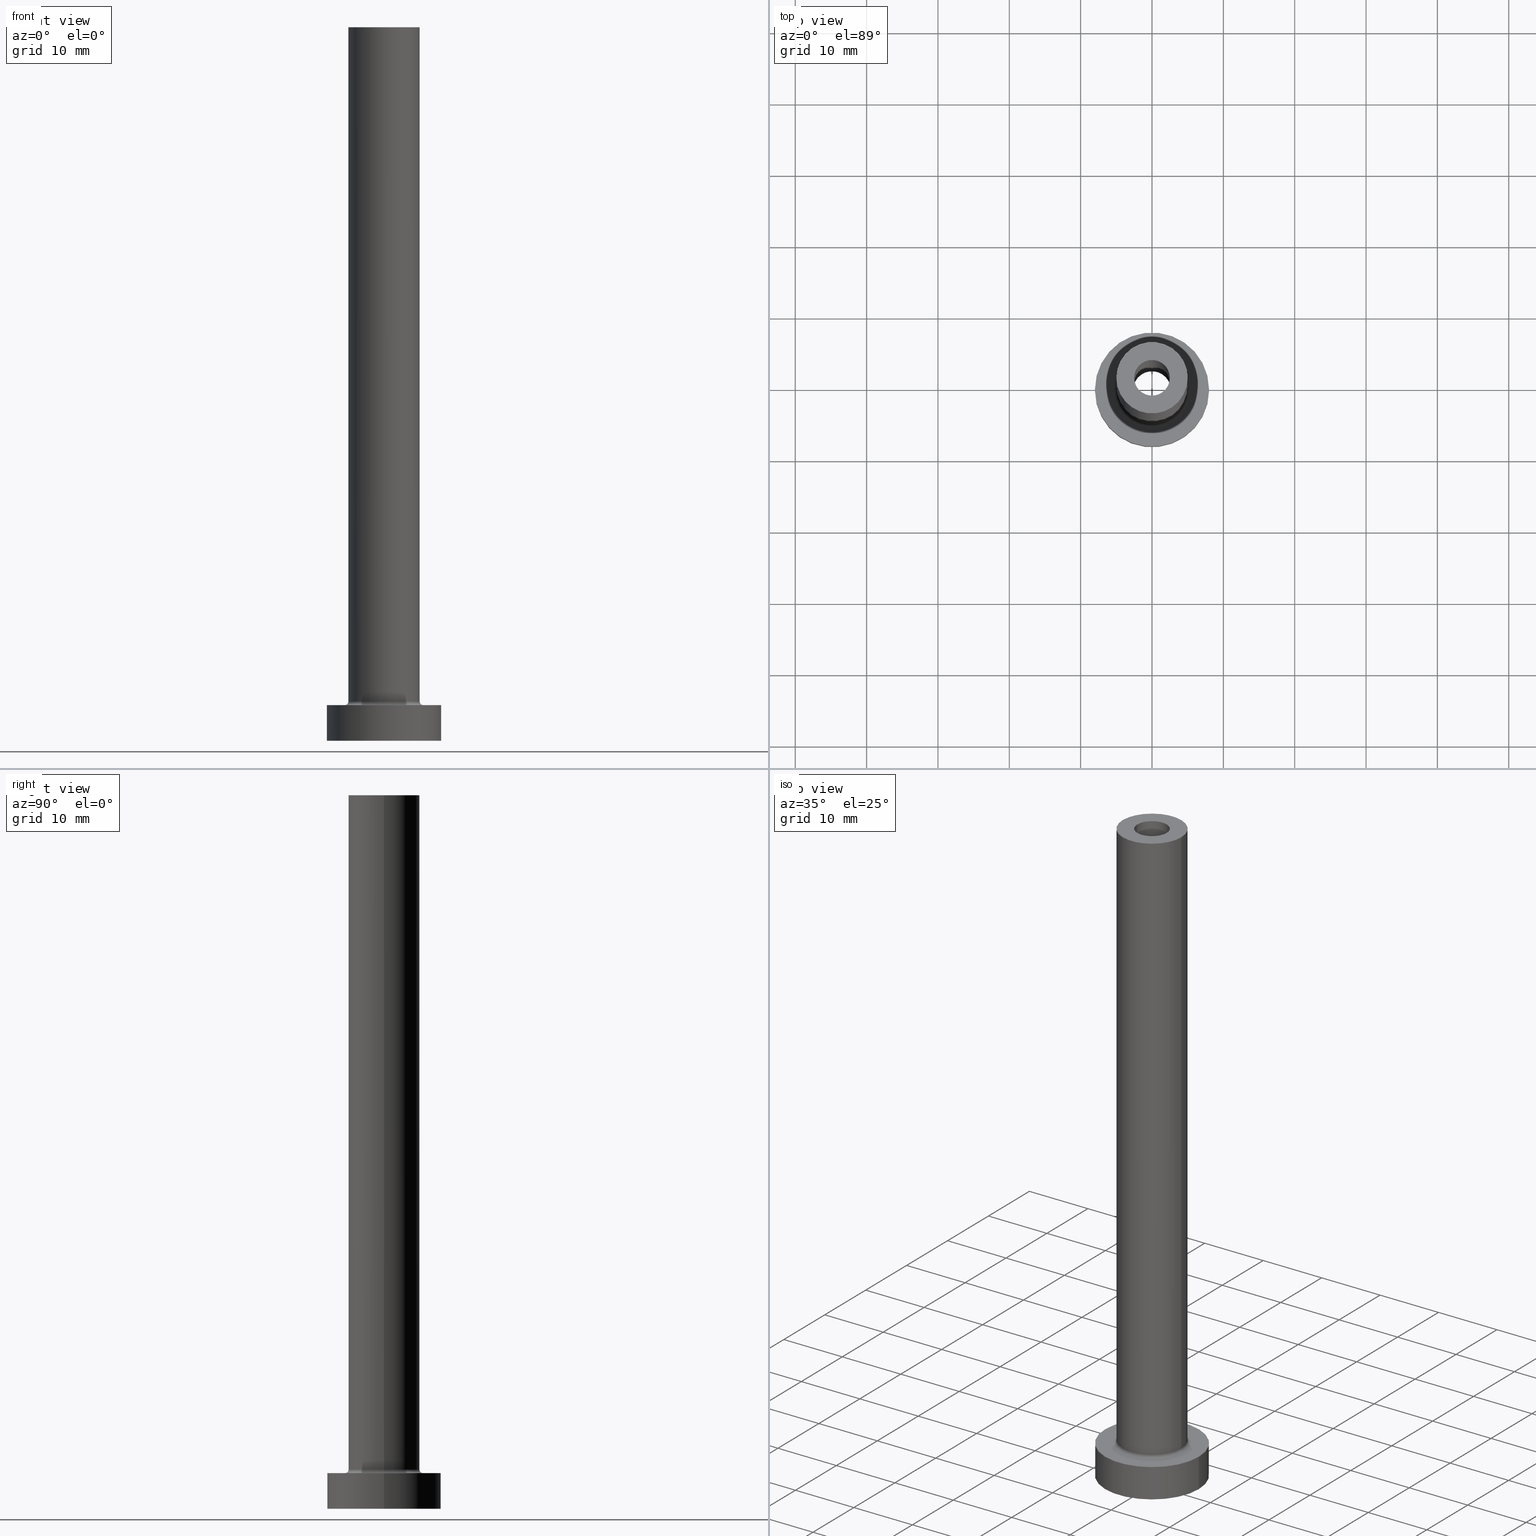
[diagram: canonical four-view strip — front | top / right | iso, engineering-drawing reading convention]
A machine part, canonical four-view strip (front | top / right | iso — engineering-drawing reading convention). The complete STEP part file that produces these views, byte-faithful:
ISO-10303-21;
HEADER;
FILE_DESCRIPTION (( 'STEP AP203' ),
    '1' );
FILE_NAME ('4add.STEP',
    '2023-02-13T17:00:49',
    ( '' ),
    ( '' ),
    'SwSTEP 2.0',
    'SolidWorks 2019',
    '' );
FILE_SCHEMA (( 'CONFIG_CONTROL_DESIGN' ));
ENDSEC;

DATA;
#1 = CIRCLE ( 'NONE', #333, 8.000000000000000000 ) ;
#2 = EDGE_CURVE ( 'NONE', #444, #179, #454, .T. ) ;
#3 = FACE_BOUND ( 'NONE', #288, .T. ) ;
#4 = DIRECTION ( 'NONE',  ( 1.000000000000000000, 0.000000000000000000, -0.000000000000000000 ) ) ;
#5 = CARTESIAN_POINT ( 'NONE',  ( 0.000000000000000000, 0.000000000000000000, 5.500000000000005329 ) ) ;
#6 = CIRCLE ( 'NONE', #61, 5.000000000000000000 ) ;
#7 = DIRECTION ( 'NONE',  ( 0.000000000000000000, 0.000000000000000000, -1.000000000000000000 ) ) ;
#8 = ORIENTED_EDGE ( 'NONE', *, *, #242, .T. ) ;
#9 = EDGE_CURVE ( 'NONE', #66, #223, #355, .T. ) ;
#10 = DIRECTION ( 'NONE',  ( 1.000000000000000000, 0.000000000000000000, 0.000000000000000000 ) ) ;
#11 = EDGE_LOOP ( 'NONE', ( #384, #90, #82, #448 ) ) ;
#12 = DIRECTION ( 'NONE',  ( -1.000000000000000000, 0.000000000000000000, 0.000000000000000000 ) ) ;
#13 = APPROVAL ( #25, 'NEUR�EN�' ) ;
#14 = LINE ( 'NONE', #159, #218 ) ;
#15 = SECURITY_CLASSIFICATION ( '', '', #129 ) ;
#16 = ORIENTED_EDGE ( 'NONE', *, *, #281, .T. ) ;
#17 = PERSON_AND_ORGANIZATION ( #270, #438 ) ;
#18 = CARTESIAN_POINT ( 'NONE',  ( 0.000000000000000000, 0.000000000000000000, 55.00000000000000711 ) ) ;
#19 = VERTEX_POINT ( 'NONE', #233 ) ;
#20 = CARTESIAN_POINT ( 'NONE',  ( -2.649999999999999911, 0.000000000000000000, 62.49533188057741739 ) ) ;
#21 = ORIENTED_EDGE ( 'NONE', *, *, #419, .T. ) ;
#22 = CC_DESIGN_APPROVAL ( #13, ( #366 ) ) ;
#23 = ORIENTED_EDGE ( 'NONE', *, *, #281, .F. ) ;
#24 = ADVANCED_FACE ( 'NONE', ( #28 ), #312, .F. ) ;
#25 = APPROVAL_STATUS ( 'not_yet_approved' ) ;
#26 = CARTESIAN_POINT ( 'NONE',  ( 5.000000000000000000, 6.123233995736766282E-16, 100.0000000000000000 ) ) ;
#27 = ORIENTED_EDGE ( 'NONE', *, *, #217, .T. ) ;
#28 = FACE_OUTER_BOUND ( 'NONE', #412, .T. ) ;
#29 = CARTESIAN_POINT ( 'NONE',  ( 5.500000000000000000, 0.000000000000000000, 5.500000000000005329 ) ) ;
#30 = AXIS2_PLACEMENT_3D ( 'NONE', #232, #126, #161 ) ;
#31 = LINE ( 'NONE', #278, #83 ) ;
#32 = CARTESIAN_POINT ( 'NONE',  ( 0.000000000000000000, 0.000000000000000000, 100.0000000000000000 ) ) ;
#33 = CARTESIAN_POINT ( 'NONE',  ( 2.649999999999999911, 3.245314017740485962E-16, 0.000000000000000000 ) ) ;
#34 = DIRECTION ( 'NONE',  ( -0.000000000000000000, -0.000000000000000000, -1.000000000000000000 ) ) ;
#35 = PRODUCT_DEFINITION_SHAPE ( 'NONE', 'NONE',  #346 ) ;
#36 = VECTOR ( 'NONE', #315, 1000.000000000000000 ) ;
#37 = ADVANCED_FACE ( 'NONE', ( #103 ), #56, .T. ) ;
#38 = DIRECTION ( 'NONE',  ( 0.000000000000000000, 0.000000000000000000, 1.000000000000000000 ) ) ;
#39 = CARTESIAN_POINT ( 'NONE',  ( 8.000000000000000000, 9.797174393178825657E-16, 5.000000000000000000 ) ) ;
#40 = DIRECTION ( 'NONE',  ( 1.000000000000000000, 0.000000000000000000, 0.000000000000000000 ) ) ;
#41 = ORIENTED_EDGE ( 'NONE', *, *, #452, .F. ) ;
#42 = AXIS2_PLACEMENT_3D ( 'NONE', #5, #181, #370 ) ;
#43 = CIRCLE ( 'NONE', #106, 2.649999999999999911 ) ;
#44 = PERSON_AND_ORGANIZATION_ROLE ( 'design_owner' ) ;
#45 = CARTESIAN_POINT ( 'NONE',  ( 0.000000000000000000, 0.000000000000000000, 5.500000000000005329 ) ) ;
#46 = VERTEX_POINT ( 'NONE', #304 ) ;
#47 = DIRECTION ( 'NONE',  ( 0.000000000000000000, 0.000000000000000000, -1.000000000000000000 ) ) ;
#48 = EDGE_CURVE ( 'NONE', #168, #340, #229, .T. ) ;
#49 = CARTESIAN_POINT ( 'NONE',  ( -5.000000000000000000, 0.000000000000000000, 5.500000000000005329 ) ) ;
#50 = ORIENTED_EDGE ( 'NONE', *, *, #94, .F. ) ;
#51 = PERSON_AND_ORGANIZATION ( #270, #438 ) ;
#52 = CC_DESIGN_APPROVAL ( #267, ( #15 ) ) ;
#53 = ORIENTED_EDGE ( 'NONE', *, *, #275, .T. ) ;
#54 = CALENDAR_DATE ( 2023, 13, 2 ) ;
#55 = CARTESIAN_POINT ( 'NONE',  ( 0.000000000000000000, 0.000000000000000000, 55.00000000000000711 ) ) ;
#56 = CYLINDRICAL_SURFACE ( 'NONE', #75, 5.000000000000000000 ) ;
#57 = LINE ( 'NONE', #26, #342 ) ;
#58 = ORIENTED_EDGE ( 'NONE', *, *, #263, .F. ) ;
#59 = ADVANCED_FACE ( 'NONE', ( #316, #248 ), #147, .F. ) ;
#60 = PERSON_AND_ORGANIZATION_ROLE ( 'design_supplier' ) ;
#61 = AXIS2_PLACEMENT_3D ( 'NONE', #32, #109, #283 ) ;
#62 = AXIS2_PLACEMENT_3D ( 'NONE', #55, #309, #336 ) ;
#63 = ORIENTED_EDGE ( 'NONE', *, *, #182, .F. ) ;
#64 = APPROVAL_DATE_TIME ( #91, #13 ) ;
#65 = DIRECTION ( 'NONE',  ( 0.000000000000000000, 0.000000000000000000, 1.000000000000000000 ) ) ;
#66 = VERTEX_POINT ( 'NONE', #206 ) ;
#67 = EDGE_CURVE ( 'NONE', #184, #92, #6, .T. ) ;
#68 = CARTESIAN_POINT ( 'NONE',  ( -8.000000000000000000, 0.000000000000000000, 5.000000000000000000 ) ) ;
#69 = AXIS2_PLACEMENT_3D ( 'NONE', #177, #47, #323 ) ;
#70 = AXIS2_PLACEMENT_3D ( 'NONE', #352, #210, #243 ) ;
#71 = FACE_OUTER_BOUND ( 'NONE', #239, .T. ) ;
#72 = DIRECTION ( 'NONE',  ( 1.000000000000000000, 0.000000000000000000, 0.000000000000000000 ) ) ;
#73 = EDGE_CURVE ( 'NONE', #300, #179, #277, .T. ) ;
#74 = CARTESIAN_POINT ( 'NONE',  ( 0.000000000000000000, 0.000000000000000000, 5.000000000000000000 ) ) ;
#75 = AXIS2_PLACEMENT_3D ( 'NONE', #194, #337, #164 ) ;
#76 = LOCAL_TIME ( 18, 0, 49.00000000000000000, #301 ) ;
#77 = PERSON_AND_ORGANIZATION ( #270, #438 ) ;
#78 = ADVANCED_BREP_SHAPE_REPRESENTATION ( '4add', ( #431, #180 ), #458 ) ;
#79 = FACE_OUTER_BOUND ( 'NONE', #133, .T. ) ;
#80 = EDGE_LOOP ( 'NONE', ( #433, #200 ) ) ;
#81 = LINE ( 'NONE', #330, #250 ) ;
#82 = ORIENTED_EDGE ( 'NONE', *, *, #135, .T. ) ;
#83 = VECTOR ( 'NONE', #459, 1000.000000000000000 ) ;
#84 = CALENDAR_DATE ( 2023, 13, 2 ) ;
#85 = DIRECTION ( 'NONE',  ( 0.000000000000000000, 0.000000000000000000, 1.000000000000000000 ) ) ;
#86 = ORIENTED_EDGE ( 'NONE', *, *, #405, .T. ) ;
#87 = EDGE_CURVE ( 'NONE', #168, #98, #364, .T. ) ;
#88 = CARTESIAN_POINT ( 'NONE',  ( 0.000000000000000000, 0.000000000000000000, 5.000000000000000000 ) ) ;
#89 = PERSON_AND_ORGANIZATION ( #270, #438 ) ;
#90 = ORIENTED_EDGE ( 'NONE', *, *, #382, .F. ) ;
#91 = DATE_AND_TIME ( #442, #211 ) ;
#92 = VERTEX_POINT ( 'NONE', #403 ) ;
#93 = APPROVAL_ROLE ( '' ) ;
#94 = EDGE_CURVE ( 'NONE', #150, #300, #14, .T. ) ;
#95 = DIRECTION ( 'NONE',  ( 1.000000000000000000, 0.000000000000000000, 0.000000000000000000 ) ) ;
#96 = VERTEX_POINT ( 'NONE', #361 ) ;
#97 = DATE_TIME_ROLE ( 'creation_date' ) ;
#98 = VERTEX_POINT ( 'NONE', #154 ) ;
#99 = CLOSED_SHELL ( 'NONE', ( #389, #424, #209, #255, #190, #199, #434, #59, #37, #311, #324, #171, #306, #24 ) ) ;
#100 = EDGE_LOOP ( 'NONE', ( #400, #257, #16, #116 ) ) ;
#101 = CC_DESIGN_DATE_AND_TIME_ASSIGNMENT ( #193, #303, ( #15 ) ) ;
#102 = DIRECTION ( 'NONE',  ( 0.000000000000000000, 0.000000000000000000, -1.000000000000000000 ) ) ;
#103 = FACE_OUTER_BOUND ( 'NONE', #11, .T. ) ;
#104 = DIRECTION ( 'NONE',  ( 1.000000000000000000, 0.000000000000000000, 0.000000000000000000 ) ) ;
#105 = AXIS2_PLACEMENT_3D ( 'NONE', #328, #123, #12 ) ;
#106 = AXIS2_PLACEMENT_3D ( 'NONE', #322, #34, #72 ) ;
#107 = PRODUCT_RELATED_PRODUCT_CATEGORY ( 'detail', '', ( #394 ) ) ;
#108 = CARTESIAN_POINT ( 'NONE',  ( 0.000000000000000000, 0.000000000000000000, 5.000000000000000000 ) ) ;
#109 = DIRECTION ( 'NONE',  ( 0.000000000000000000, 0.000000000000000000, 1.000000000000000000 ) ) ;
#110 = VECTOR ( 'NONE', #136, 1000.000000000000000 ) ;
#111 = CC_DESIGN_DATE_AND_TIME_ASSIGNMENT ( #264, #97, ( #346 ) ) ;
#112 = CARTESIAN_POINT ( 'NONE',  ( -8.000000000000000000, 0.000000000000000000, 0.000000000000000000 ) ) ;
#113 = ORIENTED_EDGE ( 'NONE', *, *, #163, .T. ) ;
#114 = DIRECTION ( 'NONE',  ( 0.000000000000000000, 0.000000000000000000, 1.000000000000000000 ) ) ;
#115 = DIRECTION ( 'NONE',  ( 1.000000000000000000, 0.000000000000000000, 0.000000000000000000 ) ) ;
#116 = ORIENTED_EDGE ( 'NONE', *, *, #353, .T. ) ;
#117 = APPLICATION_PROTOCOL_DEFINITION ( 'international standard', 'config_control_design', 1994, #425 ) ;
#118 = CARTESIAN_POINT ( 'NONE',  ( 0.000000000000000000, 0.000000000000000000, 5.000000000000000000 ) ) ;
#119 = AXIS2_PLACEMENT_3D ( 'NONE', #385, #318, #423 ) ;
#120 = CARTESIAN_POINT ( 'NONE',  ( -2.500000000000000000, 0.000000000000000000, 100.0000000000000000 ) ) ;
#121 = EDGE_CURVE ( 'NONE', #179, #300, #341, .T. ) ;
#122 = PERSON_AND_ORGANIZATION_ROLE ( 'creator' ) ;
#123 = DIRECTION ( 'NONE',  ( -0.000000000000000000, -0.000000000000000000, -1.000000000000000000 ) ) ;
#124 = ORIENTED_EDGE ( 'NONE', *, *, #67, .T. ) ;
#125 = DATE_AND_TIME ( #334, #251 ) ;
#126 = DIRECTION ( 'NONE',  ( -0.000000000000000000, -0.000000000000000000, -1.000000000000000000 ) ) ;
#127 = ORIENTED_EDGE ( 'NONE', *, *, #368, .T. ) ;
#128 = CIRCLE ( 'NONE', #260, 5.500000000000000000 ) ;
#129 = SECURITY_CLASSIFICATION_LEVEL ( 'unclassified' ) ;
#130 = AXIS2_PLACEMENT_3D ( 'NONE', #420, #320, #245 ) ;
#131 = CARTESIAN_POINT ( 'NONE',  ( -5.500000000000000000, 6.735557395310442023E-16, 5.500000000000005329 ) ) ;
#132 = CARTESIAN_POINT ( 'NONE',  ( 8.000000000000000000, 9.797174393178825657E-16, 0.000000000000000000 ) ) ;
#133 = EDGE_LOOP ( 'NONE', ( #441, #307, #436, #198 ) ) ;
#134 = PLANE ( 'NONE',  #70 ) ;
#135 = EDGE_CURVE ( 'NONE', #92, #168, #81, .T. ) ;
#136 = DIRECTION ( 'NONE',  ( -0.000000000000000000, -0.000000000000000000, -1.000000000000000000 ) ) ;
#137 = AXIS2_PLACEMENT_3D ( 'NONE', #108, #143, #104 ) ;
#138 = ORIENTED_EDGE ( 'NONE', *, *, #338, .F. ) ;
#139 =( LENGTH_UNIT ( ) NAMED_UNIT ( * ) SI_UNIT ( .MILLI., .METRE. ) );
#140 = CARTESIAN_POINT ( 'NONE',  ( 2.649999999999999911, 3.245314017740485962E-16, 62.49533188057741739 ) ) ;
#141 = CARTESIAN_POINT ( 'NONE',  ( 0.000000000000000000, 0.000000000000000000, 0.000000000000000000 ) ) ;
#142 = CC_DESIGN_PERSON_AND_ORGANIZATION_ASSIGNMENT ( #378, #372, ( #15 ) ) ;
#143 = DIRECTION ( 'NONE',  ( -0.000000000000000000, -0.000000000000000000, -1.000000000000000000 ) ) ;
#144 = AXIS2_PLACEMENT_3D ( 'NONE', #253, #397, #440 ) ;
#145 = AXIS2_PLACEMENT_3D ( 'NONE', #172, #280, #205 ) ;
#146 = CARTESIAN_POINT ( 'NONE',  ( 0.000000000000000000, 0.000000000000000000, 5.500000000000005329 ) ) ;
#147 = PLANE ( 'NONE',  #409 ) ;
#148 = DESIGN_CONTEXT ( 'detailed design', #425, 'design' ) ;
#149 = DIRECTION ( 'NONE',  ( 1.000000000000000000, 0.000000000000000000, 0.000000000000000000 ) ) ;
#150 = VERTEX_POINT ( 'NONE', #39 ) ;
#151 = AXIS2_PLACEMENT_3D ( 'NONE', #45, #437, #40 ) ;
#152 = CARTESIAN_POINT ( 'NONE',  ( -2.500000000000000000, 0.000000000000000000, 55.00000000000000711 ) ) ;
#153 = ORIENTED_EDGE ( 'NONE', *, *, #382, .T. ) ;
#154 = CARTESIAN_POINT ( 'NONE',  ( 5.000000000000000000, 6.123233995736766282E-16, 5.500000000000005329 ) ) ;
#155 = EDGE_LOOP ( 'NONE', ( #310, #53, #411, #413 ) ) ;
#156 = FACE_OUTER_BOUND ( 'NONE', #381, .T. ) ;
#157 = ORIENTED_EDGE ( 'NONE', *, *, #121, .F. ) ;
#158 = AXIS2_PLACEMENT_3D ( 'NONE', #274, #456, #417 ) ;
#159 = CARTESIAN_POINT ( 'NONE',  ( 8.000000000000000000, 9.797174393178825657E-16, 5.000000000000000000 ) ) ;
#160 = EDGE_LOOP ( 'NONE', ( #157, #215 ) ) ;
#161 = DIRECTION ( 'NONE',  ( -1.000000000000000000, 0.000000000000000000, 0.000000000000000000 ) ) ;
#162 = ORIENTED_EDGE ( 'NONE', *, *, #204, .F. ) ;
#163 = EDGE_CURVE ( 'NONE', #386, #46, #313, .T. ) ;
#164 = DIRECTION ( 'NONE',  ( -1.000000000000000000, 0.000000000000000000, 0.000000000000000000 ) ) ;
#165 = AXIS2_PLACEMENT_3D ( 'NONE', #18, #344, #95 ) ;
#166 = EDGE_LOOP ( 'NONE', ( #50, #450, #235, #169 ) ) ;
#167 = EDGE_CURVE ( 'NONE', #150, #444, #284, .T. ) ;
#168 = VERTEX_POINT ( 'NONE', #49 ) ;
#169 = ORIENTED_EDGE ( 'NONE', *, *, #121, .T. ) ;
#170 = CYLINDRICAL_SURFACE ( 'NONE', #387, 2.500000000000000000 ) ;
#171 = ADVANCED_FACE ( 'NONE', ( #285 ), #222, .F. ) ;
#172 = CARTESIAN_POINT ( 'NONE',  ( 0.000000000000000000, 0.000000000000000000, 55.00000000000000711 ) ) ;
#173 = CYLINDRICAL_SURFACE ( 'NONE', #286, 2.649999999999999911 ) ;
#174 = CIRCLE ( 'NONE', #287, 0.5000000000000004441 ) ;
#175 = APPROVAL ( #258, 'NEUR�EN�' ) ;
#176 = DIRECTION ( 'NONE',  ( 0.000000000000000000, 0.000000000000000000, -1.000000000000000000 ) ) ;
#177 = CARTESIAN_POINT ( 'NONE',  ( 0.000000000000000000, 0.000000000000000000, 62.49533188057741739 ) ) ;
#178 = LINE ( 'NONE', #120, #321 ) ;
#179 = VERTEX_POINT ( 'NONE', #112 ) ;
#180 = AXIS2_PLACEMENT_3D ( 'NONE', #293, #114, #369 ) ;
#181 = DIRECTION ( 'NONE',  ( 0.000000000000000000, 0.000000000000000000, 1.000000000000000000 ) ) ;
#182 = EDGE_CURVE ( 'NONE', #371, #241, #202, .T. ) ;
#183 = FACE_OUTER_BOUND ( 'NONE', #166, .T. ) ;
#184 = VERTEX_POINT ( 'NONE', #432 ) ;
#185 = APPLICATION_PROTOCOL_DEFINITION ( 'international standard', 'config_control_design', 1994, #252 ) ;
#186 = CARTESIAN_POINT ( 'NONE',  ( 0.000000000000000000, 0.000000000000000000, 5.000000000000000000 ) ) ;
#187 = EDGE_LOOP ( 'NONE', ( #8, #345 ) ) ;
#188 = CIRCLE ( 'NONE', #305, 2.500000000000000000 ) ;
#189 = COORDINATED_UNIVERSAL_TIME_OFFSET ( 1, 0, .AHEAD. ) ;
#190 = ADVANCED_FACE ( 'NONE', ( #79 ), #367, .T. ) ;
#191 = CYLINDRICAL_SURFACE ( 'NONE', #30, 5.000000000000000000 ) ;
#192 = ORIENTED_EDGE ( 'NONE', *, *, #217, .F. ) ;
#193 = DATE_AND_TIME ( #54, #76 ) ;
#194 = CARTESIAN_POINT ( 'NONE',  ( 0.000000000000000000, 0.000000000000000000, 100.0000000000000000 ) ) ;
#195 = ORIENTED_EDGE ( 'NONE', *, *, #358, .F. ) ;
#196 = AXIS2_PLACEMENT_3D ( 'NONE', #74, #38, #4 ) ;
#197 = FACE_OUTER_BOUND ( 'NONE', #155, .T. ) ;
#198 = ORIENTED_EDGE ( 'NONE', *, *, #2, .F. ) ;
#199 = ADVANCED_FACE ( 'NONE', ( #183 ), #295, .T. ) ;
#200 = ORIENTED_EDGE ( 'NONE', *, *, #163, .F. ) ;
#201 = CARTESIAN_POINT ( 'NONE',  ( 0.000000000000000000, 0.000000000000000000, 62.49533188057741739 ) ) ;
#202 = CIRCLE ( 'NONE', #144, 2.500000000000000000 ) ;
#203 =( NAMED_UNIT ( * ) PLANE_ANGLE_UNIT ( ) SI_UNIT ( $, .RADIAN. ) );
#204 = EDGE_CURVE ( 'NONE', #340, #96, #128, .T. ) ;
#205 = DIRECTION ( 'NONE',  ( 1.000000000000000000, 0.000000000000000000, 0.000000000000000000 ) ) ;
#206 = CARTESIAN_POINT ( 'NONE',  ( 2.500000000000000000, 3.061616997868382648E-16, 100.0000000000000000 ) ) ;
#207 = DIRECTION ( 'NONE',  ( 0.000000000000000000, 0.000000000000000000, 1.000000000000000000 ) ) ;
#208 = DIRECTION ( 'NONE',  ( 1.224646799147353207E-16, 1.000000000000000000, -0.000000000000000000 ) ) ;
#209 = ADVANCED_FACE ( 'NONE', ( #156 ), #230, .F. ) ;
#210 = DIRECTION ( 'NONE',  ( 0.000000000000000000, 0.000000000000000000, 1.000000000000000000 ) ) ;
#211 = LOCAL_TIME ( 18, 0, 49.00000000000000000, #375 ) ;
#212 = APPROVAL_ROLE ( '' ) ;
#213 = DIRECTION ( 'NONE',  ( -0.000000000000000000, -0.000000000000000000, -1.000000000000000000 ) ) ;
#214 = DIRECTION ( 'NONE',  ( -1.000000000000000000, 0.000000000000000000, 0.000000000000000000 ) ) ;
#215 = ORIENTED_EDGE ( 'NONE', *, *, #73, .F. ) ;
#216 = DIRECTION ( 'NONE',  ( -0.000000000000000000, -0.000000000000000000, -1.000000000000000000 ) ) ;
#217 = EDGE_CURVE ( 'NONE', #223, #241, #178, .T. ) ;
#218 = VECTOR ( 'NONE', #213, 1000.000000000000000 ) ;
#219 = ORIENTED_EDGE ( 'NONE', *, *, #87, .F. ) ;
#220 = APPROVAL_PERSON_ORGANIZATION ( #89, #13, #408 ) ;
#221 = APPROVAL_DATE_TIME ( #261, #175 ) ;
#222 = CYLINDRICAL_SURFACE ( 'NONE', #69, 2.649999999999999911 ) ;
#223 = VERTEX_POINT ( 'NONE', #365 ) ;
#224 =( NAMED_UNIT ( * ) SI_UNIT ( $, .STERADIAN. ) SOLID_ANGLE_UNIT ( ) );
#225 = DIRECTION ( 'NONE',  ( 1.000000000000000000, 0.000000000000000000, 0.000000000000000000 ) ) ;
#226 = ORIENTED_EDGE ( 'NONE', *, *, #9, .T. ) ;
#227 = CC_DESIGN_PERSON_AND_ORGANIZATION_ASSIGNMENT ( #17, #122, ( #366 ) ) ;
#228 = ORIENTED_EDGE ( 'NONE', *, *, #405, .F. ) ;
#229 = CIRCLE ( 'NONE', #259, 0.5000000000000004441 ) ;
#230 = TOROIDAL_SURFACE ( 'NONE', #151, 5.500000000000000000, 0.5000000000000000000 ) ;
#231 = PERSON_AND_ORGANIZATION ( #270, #438 ) ;
#232 = CARTESIAN_POINT ( 'NONE',  ( 0.000000000000000000, 0.000000000000000000, 100.0000000000000000 ) ) ;
#233 = CARTESIAN_POINT ( 'NONE',  ( 2.649999999999999911, 3.245314017740485962E-16, 55.00000000000000711 ) ) ;
#234 = FACE_OUTER_BOUND ( 'NONE', #406, .T. ) ;
#235 = ORIENTED_EDGE ( 'NONE', *, *, #2, .T. ) ;
#236 = CC_DESIGN_PERSON_AND_ORGANIZATION_ASSIGNMENT ( #231, #60, ( #366 ) ) ;
#237 = LOCAL_TIME ( 18, 0, 49.00000000000000000, #401 ) ;
#238 = DIRECTION ( 'NONE',  ( 0.000000000000000000, 0.000000000000000000, -1.000000000000000000 ) ) ;
#239 = EDGE_LOOP ( 'NONE', ( #362, #292, #113, #23 ) ) ;
#240 = DIRECTION ( 'NONE',  ( 1.000000000000000000, 0.000000000000000000, 0.000000000000000000 ) ) ;
#241 = VERTEX_POINT ( 'NONE', #152 ) ;
#242 = EDGE_CURVE ( 'NONE', #444, #150, #1, .T. ) ;
#243 = DIRECTION ( 'NONE',  ( 1.000000000000000000, 0.000000000000000000, -0.000000000000000000 ) ) ;
#244 = DIRECTION ( 'NONE',  ( 1.000000000000000000, 0.000000000000000000, -0.000000000000000000 ) ) ;
#245 = DIRECTION ( 'NONE',  ( 1.000000000000000000, 0.000000000000000000, 0.000000000000000000 ) ) ;
#246 = CC_DESIGN_APPROVAL ( #175, ( #346 ) ) ;
#247 = CARTESIAN_POINT ( 'NONE',  ( -2.649999999999999911, 0.000000000000000000, 55.00000000000000711 ) ) ;
#248 = FACE_OUTER_BOUND ( 'NONE', #160, .T. ) ;
#249 = FACE_OUTER_BOUND ( 'NONE', #187, .T. ) ;
#250 = VECTOR ( 'NONE', #360, 1000.000000000000000 ) ;
#251 = LOCAL_TIME ( 18, 0, 49.00000000000000000, #189 ) ;
#252 = APPLICATION_CONTEXT ( 'configuration controlled 3d designs of mechanical parts and assemblies' ) ;
#253 = CARTESIAN_POINT ( 'NONE',  ( 0.000000000000000000, 0.000000000000000000, 55.00000000000000711 ) ) ;
#254 = ORIENTED_EDGE ( 'NONE', *, *, #452, .T. ) ;
#255 = ADVANCED_FACE ( 'NONE', ( #197 ), #191, .T. ) ;
#256 = DIRECTION ( 'NONE',  ( 1.000000000000000000, 0.000000000000000000, 0.000000000000000000 ) ) ;
#257 = ORIENTED_EDGE ( 'NONE', *, *, #263, .T. ) ;
#258 = APPROVAL_STATUS ( 'not_yet_approved' ) ;
#259 = AXIS2_PLACEMENT_3D ( 'NONE', #131, #208, #391 ) ;
#260 = AXIS2_PLACEMENT_3D ( 'NONE', #88, #216, #225 ) ;
#261 = DATE_AND_TIME ( #84, #237 ) ;
#262 = CARTESIAN_POINT ( 'NONE',  ( 0.000000000000000000, 0.000000000000000000, 5.000000000000000000 ) ) ;
#263 = EDGE_CURVE ( 'NONE', #19, #335, #266, .T. ) ;
#264 = DATE_AND_TIME ( #359, #415 ) ;
#265 = ORIENTED_EDGE ( 'NONE', *, *, #294, .F. ) ;
#266 = CIRCLE ( 'NONE', #165, 2.649999999999999911 ) ;
#267 = APPROVAL ( #343, 'NEUR�EN�' ) ;
#268 = FACE_BOUND ( 'NONE', #374, .T. ) ;
#269 = ORIENTED_EDGE ( 'NONE', *, *, #48, .T. ) ;
#270 = PERSON ( 'NEUR�EN�', 'NEUR�EN�', 'NEUR�EN�', ('NEUR�EN�'), ('NEUR�EN�'), ('NEUR�EN�') ) ;
#271 = CARTESIAN_POINT ( 'NONE',  ( 0.000000000000000000, 0.000000000000000000, 100.0000000000000000 ) ) ;
#272 = VECTOR ( 'NONE', #238, 1000.000000000000000 ) ;
#273 = LINE ( 'NONE', #140, #36 ) ;
#274 = CARTESIAN_POINT ( 'NONE',  ( 0.000000000000000000, 0.000000000000000000, 100.0000000000000000 ) ) ;
#275 = EDGE_CURVE ( 'NONE', #184, #98, #57, .T. ) ;
#276 = FACE_OUTER_BOUND ( 'NONE', #377, .T. ) ;
#277 = CIRCLE ( 'NONE', #331, 8.000000000000000000 ) ;
#278 = CARTESIAN_POINT ( 'NONE',  ( 2.500000000000000000, 3.061616997868382648E-16, 100.0000000000000000 ) ) ;
#279 = CIRCLE ( 'NONE', #119, 5.000000000000000000 ) ;
#280 = DIRECTION ( 'NONE',  ( 0.000000000000000000, 0.000000000000000000, 1.000000000000000000 ) ) ;
#281 = EDGE_CURVE ( 'NONE', #335, #46, #455, .T. ) ;
#282 = PERSON_AND_ORGANIZATION ( #270, #438 ) ;
#283 = DIRECTION ( 'NONE',  ( 1.000000000000000000, 0.000000000000000000, 0.000000000000000000 ) ) ;
#284 = CIRCLE ( 'NONE', #349, 8.000000000000000000 ) ;
#285 = FACE_OUTER_BOUND ( 'NONE', #100, .T. ) ;
#286 = AXIS2_PLACEMENT_3D ( 'NONE', #201, #176, #418 ) ;
#287 = AXIS2_PLACEMENT_3D ( 'NONE', #29, #416, #102 ) ;
#288 = EDGE_LOOP ( 'NONE', ( #86, #326 ) ) ;
#289 = CC_DESIGN_PERSON_AND_ORGANIZATION_ASSIGNMENT ( #282, #426, ( #346 ) ) ;
#290 = DIRECTION ( 'NONE',  ( -0.000000000000000000, -0.000000000000000000, -1.000000000000000000 ) ) ;
#291 = ORIENTED_EDGE ( 'NONE', *, *, #368, .F. ) ;
#292 = ORIENTED_EDGE ( 'NONE', *, *, #319, .T. ) ;
#293 = CARTESIAN_POINT ( 'NONE',  ( 0.000000000000000000, 0.000000000000000000, 0.000000000000000000 ) ) ;
#294 = EDGE_CURVE ( 'NONE', #241, #371, #188, .T. ) ;
#295 = CYLINDRICAL_SURFACE ( 'NONE', #105, 8.000000000000000000 ) ;
#296 = UNCERTAINTY_MEASURE_WITH_UNIT (LENGTH_MEASURE( 1.000000000000000082E-05 ), #139, 'distance_accuracy_value', 'NONE');
#297 = ORIENTED_EDGE ( 'NONE', *, *, #419, .F. ) ;
#298 = AXIS2_PLACEMENT_3D ( 'NONE', #390, #207, #354 ) ;
#299 = DIRECTION ( 'NONE',  ( -0.000000000000000000, -0.000000000000000000, -1.000000000000000000 ) ) ;
#300 = VERTEX_POINT ( 'NONE', #132 ) ;
#301 = COORDINATED_UNIVERSAL_TIME_OFFSET ( 1, 0, .AHEAD. ) ;
#302 = DIRECTION ( 'NONE',  ( 0.000000000000000000, 0.000000000000000000, 1.000000000000000000 ) ) ;
#303 = DATE_TIME_ROLE ( 'classification_date' ) ;
#304 = CARTESIAN_POINT ( 'NONE',  ( -2.649999999999999911, 0.000000000000000000, 0.000000000000000000 ) ) ;
#305 = AXIS2_PLACEMENT_3D ( 'NONE', #445, #65, #373 ) ;
#306 = ADVANCED_FACE ( 'NONE', ( #268, #234 ), #443, .F. ) ;
#307 = ORIENTED_EDGE ( 'NONE', *, *, #94, .T. ) ;
#308 = APPROVAL_DATE_TIME ( #125, #267 ) ;
#309 = DIRECTION ( 'NONE',  ( 0.000000000000000000, 0.000000000000000000, 1.000000000000000000 ) ) ;
#310 = ORIENTED_EDGE ( 'NONE', *, *, #67, .F. ) ;
#311 = ADVANCED_FACE ( 'NONE', ( #379, #453 ), #134, .T. ) ;
#312 = CYLINDRICAL_SURFACE ( 'NONE', #158, 2.500000000000000000 ) ;
#313 = CIRCLE ( 'NONE', #428, 2.649999999999999911 ) ;
#314 = CC_DESIGN_SECURITY_CLASSIFICATION ( #15, ( #366 ) ) ;
#315 = DIRECTION ( 'NONE',  ( 0.000000000000000000, 0.000000000000000000, -1.000000000000000000 ) ) ;
#316 = FACE_BOUND ( 'NONE', #80, .T. ) ;
#317 = FACE_OUTER_BOUND ( 'NONE', #380, .T. ) ;
#318 = DIRECTION ( 'NONE',  ( 0.000000000000000000, 0.000000000000000000, 1.000000000000000000 ) ) ;
#319 = EDGE_CURVE ( 'NONE', #19, #386, #273, .T. ) ;
#320 = DIRECTION ( 'NONE',  ( 0.000000000000000000, 0.000000000000000000, 1.000000000000000000 ) ) ;
#321 = VECTOR ( 'NONE', #7, 1000.000000000000000 ) ;
#322 = CARTESIAN_POINT ( 'NONE',  ( 0.000000000000000000, 0.000000000000000000, 0.000000000000000000 ) ) ;
#323 = DIRECTION ( 'NONE',  ( -1.000000000000000000, 0.000000000000000000, 0.000000000000000000 ) ) ;
#324 = ADVANCED_FACE ( 'NONE', ( #317 ), #325, .F. ) ;
#325 = TOROIDAL_SURFACE ( 'NONE', #357, 5.500000000000000000, 0.5000000000000000000 ) ;
#326 = ORIENTED_EDGE ( 'NONE', *, *, #204, .T. ) ;
#327 = CARTESIAN_POINT ( 'NONE',  ( 0.000000000000000000, 0.000000000000000000, 0.000000000000000000 ) ) ;
#328 = CARTESIAN_POINT ( 'NONE',  ( 0.000000000000000000, 0.000000000000000000, 5.000000000000000000 ) ) ;
#329 = EDGE_LOOP ( 'NONE', ( #153, #124 ) ) ;
#330 = CARTESIAN_POINT ( 'NONE',  ( -5.000000000000000000, 0.000000000000000000, 100.0000000000000000 ) ) ;
#331 = AXIS2_PLACEMENT_3D ( 'NONE', #421, #427, #115 ) ;
#332 = ORIENTED_EDGE ( 'NONE', *, *, #9, .F. ) ;
#333 = AXIS2_PLACEMENT_3D ( 'NONE', #262, #407, #449 ) ;
#334 = CALENDAR_DATE ( 2023, 13, 2 ) ;
#335 = VERTEX_POINT ( 'NONE', #247 ) ;
#336 = DIRECTION ( 'NONE',  ( 1.000000000000000000, 0.000000000000000000, -0.000000000000000000 ) ) ;
#337 = DIRECTION ( 'NONE',  ( -0.000000000000000000, -0.000000000000000000, -1.000000000000000000 ) ) ;
#338 = EDGE_CURVE ( 'NONE', #335, #19, #350, .T. ) ;
#339 = DIRECTION ( 'NONE',  ( -0.000000000000000000, -0.000000000000000000, -1.000000000000000000 ) ) ;
#340 = VERTEX_POINT ( 'NONE', #460 ) ;
#341 = CIRCLE ( 'NONE', #457, 8.000000000000000000 ) ;
#342 = VECTOR ( 'NONE', #339, 1000.000000000000000 ) ;
#343 = APPROVAL_STATUS ( 'not_yet_approved' ) ;
#344 = DIRECTION ( 'NONE',  ( 0.000000000000000000, 0.000000000000000000, 1.000000000000000000 ) ) ;
#345 = ORIENTED_EDGE ( 'NONE', *, *, #167, .T. ) ;
#346 = PRODUCT_DEFINITION ( 'NEZN�M�', '', #366, #148 ) ;
#347 = EDGE_LOOP ( 'NONE', ( #297, #332 ) ) ;
#348 = CARTESIAN_POINT ( 'NONE',  ( -8.000000000000000000, 0.000000000000000000, 5.000000000000000000 ) ) ;
#349 = AXIS2_PLACEMENT_3D ( 'NONE', #118, #85, #149 ) ;
#350 = CIRCLE ( 'NONE', #145, 2.649999999999999911 ) ;
#351 = DIRECTION ( 'NONE',  ( 0.000000000000000000, 0.000000000000000000, 1.000000000000000000 ) ) ;
#352 = CARTESIAN_POINT ( 'NONE',  ( 0.000000000000000000, 0.000000000000000000, 100.0000000000000000 ) ) ;
#353 = EDGE_CURVE ( 'NONE', #46, #386, #43, .T. ) ;
#354 = DIRECTION ( 'NONE',  ( 1.000000000000000000, 0.000000000000000000, 0.000000000000000000 ) ) ;
#355 = CIRCLE ( 'NONE', #402, 2.500000000000000000 ) ;
#356 = DIRECTION ( 'NONE',  ( -1.000000000000000000, 0.000000000000000000, 0.000000000000000000 ) ) ;
#357 = AXIS2_PLACEMENT_3D ( 'NONE', #146, #351, #240 ) ;
#358 = EDGE_CURVE ( 'NONE', #98, #168, #279, .T. ) ;
#359 = CALENDAR_DATE ( 2023, 13, 2 ) ;
#360 = DIRECTION ( 'NONE',  ( -0.000000000000000000, -0.000000000000000000, -1.000000000000000000 ) ) ;
#361 = CARTESIAN_POINT ( 'NONE',  ( 5.500000000000000000, 0.000000000000000000, 5.000000000000002665 ) ) ;
#362 = ORIENTED_EDGE ( 'NONE', *, *, #338, .T. ) ;
#363 = PERSON_AND_ORGANIZATION ( #270, #438 ) ;
#364 = CIRCLE ( 'NONE', #42, 5.000000000000000000 ) ;
#365 = CARTESIAN_POINT ( 'NONE',  ( -2.500000000000000000, 0.000000000000000000, 100.0000000000000000 ) ) ;
#366 = PRODUCT_DEFINITION_FORMATION_WITH_SPECIFIED_SOURCE ( 'LIBOVOLN�', '', #394, .NOT_KNOWN. ) ;
#367 = CYLINDRICAL_SURFACE ( 'NONE', #446, 8.000000000000000000 ) ;
#368 = EDGE_CURVE ( 'NONE', #66, #371, #31, .T. ) ;
#369 = DIRECTION ( 'NONE',  ( 1.000000000000000000, 0.000000000000000000, 0.000000000000000000 ) ) ;
#370 = DIRECTION ( 'NONE',  ( 1.000000000000000000, 0.000000000000000000, 0.000000000000000000 ) ) ;
#371 = VERTEX_POINT ( 'NONE', #422 ) ;
#372 = PERSON_AND_ORGANIZATION_ROLE ( 'classification_officer' ) ;
#373 = DIRECTION ( 'NONE',  ( 1.000000000000000000, 0.000000000000000000, 0.000000000000000000 ) ) ;
#374 = EDGE_LOOP ( 'NONE', ( #439, #430 ) ) ;
#375 = COORDINATED_UNIVERSAL_TIME_OFFSET ( 1, 0, .AHEAD. ) ;
#376 = CC_DESIGN_PERSON_AND_ORGANIZATION_ASSIGNMENT ( #363, #44, ( #394 ) ) ;
#377 = EDGE_LOOP ( 'NONE', ( #21, #127, #265, #192 ) ) ;
#378 = PERSON_AND_ORGANIZATION ( #270, #438 ) ;
#379 = FACE_BOUND ( 'NONE', #347, .T. ) ;
#380 = EDGE_LOOP ( 'NONE', ( #398, #195, #254, #162 ) ) ;
#381 = EDGE_LOOP ( 'NONE', ( #219, #269, #228, #41 ) ) ;
#382 = EDGE_CURVE ( 'NONE', #92, #184, #404, .T. ) ;
#383 = CIRCLE ( 'NONE', #137, 5.500000000000000000 ) ;
#384 = ORIENTED_EDGE ( 'NONE', *, *, #275, .F. ) ;
#385 = CARTESIAN_POINT ( 'NONE',  ( 0.000000000000000000, 0.000000000000000000, 5.500000000000005329 ) ) ;
#386 = VERTEX_POINT ( 'NONE', #33 ) ;
#387 = AXIS2_PLACEMENT_3D ( 'NONE', #388, #461, #356 ) ;
#388 = CARTESIAN_POINT ( 'NONE',  ( 0.000000000000000000, 0.000000000000000000, 100.0000000000000000 ) ) ;
#389 = ADVANCED_FACE ( 'NONE', ( #276 ), #170, .F. ) ;
#390 = CARTESIAN_POINT ( 'NONE',  ( 0.000000000000000000, 0.000000000000000000, 100.0000000000000000 ) ) ;
#391 = DIRECTION ( 'NONE',  ( -1.000000000000000000, 1.224646799147351482E-16, 0.000000000000000000 ) ) ;
#392 = PLANE ( 'NONE',  #196 ) ;
#393 = DIRECTION ( 'NONE',  ( 0.000000000000000000, 0.000000000000000000, 1.000000000000000000 ) ) ;
#394 = PRODUCT ( '4add', '4add', '', ( #399 ) ) ;
#395 = COORDINATED_UNIVERSAL_TIME_OFFSET ( 1, 0, .AHEAD. ) ;
#396 = APPROVAL_PERSON_ORGANIZATION ( #51, #267, #93 ) ;
#397 = DIRECTION ( 'NONE',  ( 0.000000000000000000, 0.000000000000000000, 1.000000000000000000 ) ) ;
#398 = ORIENTED_EDGE ( 'NONE', *, *, #48, .F. ) ;
#399 = MECHANICAL_CONTEXT ( 'NONE', #252, 'mechanical' ) ;
#400 = ORIENTED_EDGE ( 'NONE', *, *, #319, .F. ) ;
#401 = COORDINATED_UNIVERSAL_TIME_OFFSET ( 1, 0, .AHEAD. ) ;
#402 = AXIS2_PLACEMENT_3D ( 'NONE', #271, #302, #414 ) ;
#403 = CARTESIAN_POINT ( 'NONE',  ( -5.000000000000000000, 0.000000000000000000, 100.0000000000000000 ) ) ;
#404 = CIRCLE ( 'NONE', #130, 5.000000000000000000 ) ;
#405 = EDGE_CURVE ( 'NONE', #96, #340, #383, .T. ) ;
#406 = EDGE_LOOP ( 'NONE', ( #138, #58 ) ) ;
#407 = DIRECTION ( 'NONE',  ( 0.000000000000000000, 0.000000000000000000, 1.000000000000000000 ) ) ;
#408 = APPROVAL_ROLE ( '' ) ;
#409 = AXIS2_PLACEMENT_3D ( 'NONE', #141, #393, #244 ) ;
#410 = CIRCLE ( 'NONE', #298, 2.500000000000000000 ) ;
#411 = ORIENTED_EDGE ( 'NONE', *, *, #358, .T. ) ;
#412 = EDGE_LOOP ( 'NONE', ( #291, #226, #27, #63 ) ) ;
#413 = ORIENTED_EDGE ( 'NONE', *, *, #135, .F. ) ;
#414 = DIRECTION ( 'NONE',  ( 1.000000000000000000, 0.000000000000000000, 0.000000000000000000 ) ) ;
#415 = LOCAL_TIME ( 18, 0, 49.00000000000000000, #395 ) ;
#416 = DIRECTION ( 'NONE',  ( 0.000000000000000000, -1.000000000000000000, 0.000000000000000000 ) ) ;
#417 = DIRECTION ( 'NONE',  ( -1.000000000000000000, 0.000000000000000000, 0.000000000000000000 ) ) ;
#418 = DIRECTION ( 'NONE',  ( -1.000000000000000000, 0.000000000000000000, 0.000000000000000000 ) ) ;
#419 = EDGE_CURVE ( 'NONE', #223, #66, #410, .T. ) ;
#420 = CARTESIAN_POINT ( 'NONE',  ( 0.000000000000000000, 0.000000000000000000, 100.0000000000000000 ) ) ;
#421 = CARTESIAN_POINT ( 'NONE',  ( 0.000000000000000000, 0.000000000000000000, 0.000000000000000000 ) ) ;
#422 = CARTESIAN_POINT ( 'NONE',  ( 2.500000000000000000, 3.061616997868382648E-16, 55.00000000000000711 ) ) ;
#423 = DIRECTION ( 'NONE',  ( 1.000000000000000000, 0.000000000000000000, 0.000000000000000000 ) ) ;
#424 = ADVANCED_FACE ( 'NONE', ( #71 ), #173, .F. ) ;
#425 = APPLICATION_CONTEXT ( 'configuration controlled 3d designs of mechanical parts and assemblies' ) ;
#426 = PERSON_AND_ORGANIZATION_ROLE ( 'creator' ) ;
#427 = DIRECTION ( 'NONE',  ( 0.000000000000000000, 0.000000000000000000, 1.000000000000000000 ) ) ;
#428 = AXIS2_PLACEMENT_3D ( 'NONE', #327, #299, #10 ) ;
#429 = CARTESIAN_POINT ( 'NONE',  ( 0.000000000000000000, 0.000000000000000000, 0.000000000000000000 ) ) ;
#430 = ORIENTED_EDGE ( 'NONE', *, *, #182, .T. ) ;
#431 = MANIFOLD_SOLID_BREP ( 'Odebrat vysunut�m4', #99 ) ;
#432 = CARTESIAN_POINT ( 'NONE',  ( 5.000000000000000000, 6.123233995736766282E-16, 100.0000000000000000 ) ) ;
#433 = ORIENTED_EDGE ( 'NONE', *, *, #353, .F. ) ;
#434 = ADVANCED_FACE ( 'NONE', ( #3, #249 ), #392, .T. ) ;
#435 = DIRECTION ( 'NONE',  ( 0.000000000000000000, 0.000000000000000000, 1.000000000000000000 ) ) ;
#436 = ORIENTED_EDGE ( 'NONE', *, *, #73, .T. ) ;
#437 = DIRECTION ( 'NONE',  ( 0.000000000000000000, 0.000000000000000000, 1.000000000000000000 ) ) ;
#438 = ORGANIZATION ( 'NEUR�EN�', 'NEUR�EN�', '' ) ;
#439 = ORIENTED_EDGE ( 'NONE', *, *, #294, .T. ) ;
#440 = DIRECTION ( 'NONE',  ( 1.000000000000000000, 0.000000000000000000, 0.000000000000000000 ) ) ;
#441 = ORIENTED_EDGE ( 'NONE', *, *, #167, .F. ) ;
#442 = CALENDAR_DATE ( 2023, 13, 2 ) ;
#443 = PLANE ( 'NONE',  #62 ) ;
#444 = VERTEX_POINT ( 'NONE', #348 ) ;
#445 = CARTESIAN_POINT ( 'NONE',  ( 0.000000000000000000, 0.000000000000000000, 55.00000000000000711 ) ) ;
#446 = AXIS2_PLACEMENT_3D ( 'NONE', #186, #290, #214 ) ;
#447 = APPROVAL_PERSON_ORGANIZATION ( #77, #175, #212 ) ;
#448 = ORIENTED_EDGE ( 'NONE', *, *, #87, .T. ) ;
#449 = DIRECTION ( 'NONE',  ( 1.000000000000000000, 0.000000000000000000, 0.000000000000000000 ) ) ;
#450 = ORIENTED_EDGE ( 'NONE', *, *, #242, .F. ) ;
#451 = SHAPE_DEFINITION_REPRESENTATION ( #35, #78 ) ;
#452 = EDGE_CURVE ( 'NONE', #98, #96, #174, .T. ) ;
#453 = FACE_OUTER_BOUND ( 'NONE', #329, .T. ) ;
#454 = LINE ( 'NONE', #68, #110 ) ;
#455 = LINE ( 'NONE', #20, #272 ) ;
#456 = DIRECTION ( 'NONE',  ( 0.000000000000000000, 0.000000000000000000, -1.000000000000000000 ) ) ;
#457 = AXIS2_PLACEMENT_3D ( 'NONE', #429, #435, #256 ) ;
#458 =( GEOMETRIC_REPRESENTATION_CONTEXT ( 3 ) GLOBAL_UNCERTAINTY_ASSIGNED_CONTEXT ( ( #296 ) ) GLOBAL_UNIT_ASSIGNED_CONTEXT ( ( #139, #203, #224 ) ) REPRESENTATION_CONTEXT ( 'NONE', 'WORKASPACE' ) );
#459 = DIRECTION ( 'NONE',  ( 0.000000000000000000, 0.000000000000000000, -1.000000000000000000 ) ) ;
#460 = CARTESIAN_POINT ( 'NONE',  ( -5.500000000000000000, 6.735557395310442023E-16, 5.000000000000002665 ) ) ;
#461 = DIRECTION ( 'NONE',  ( 0.000000000000000000, 0.000000000000000000, -1.000000000000000000 ) ) ;
ENDSEC;
END-ISO-10303-21;
